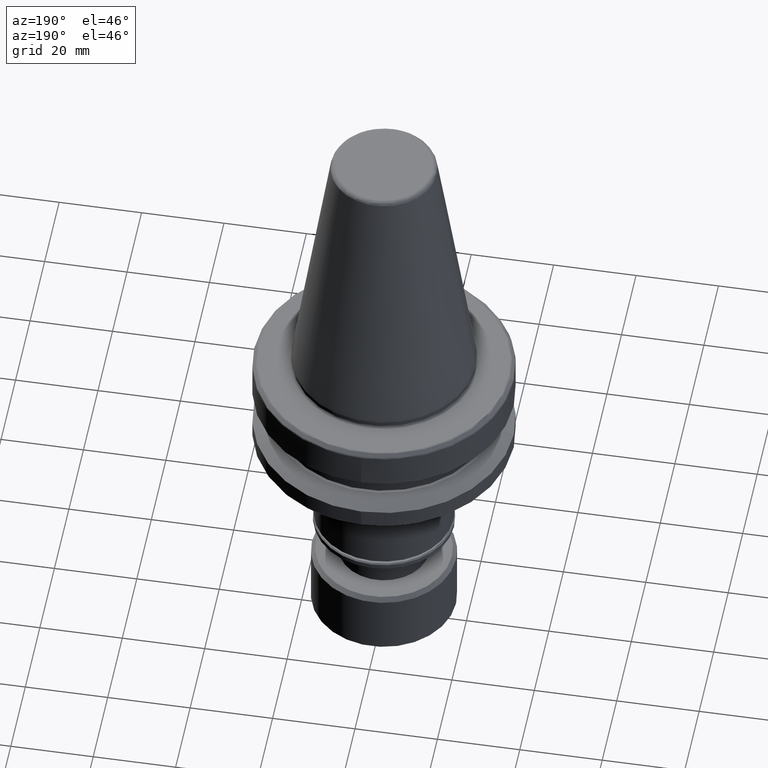
[diagram: clean part render]
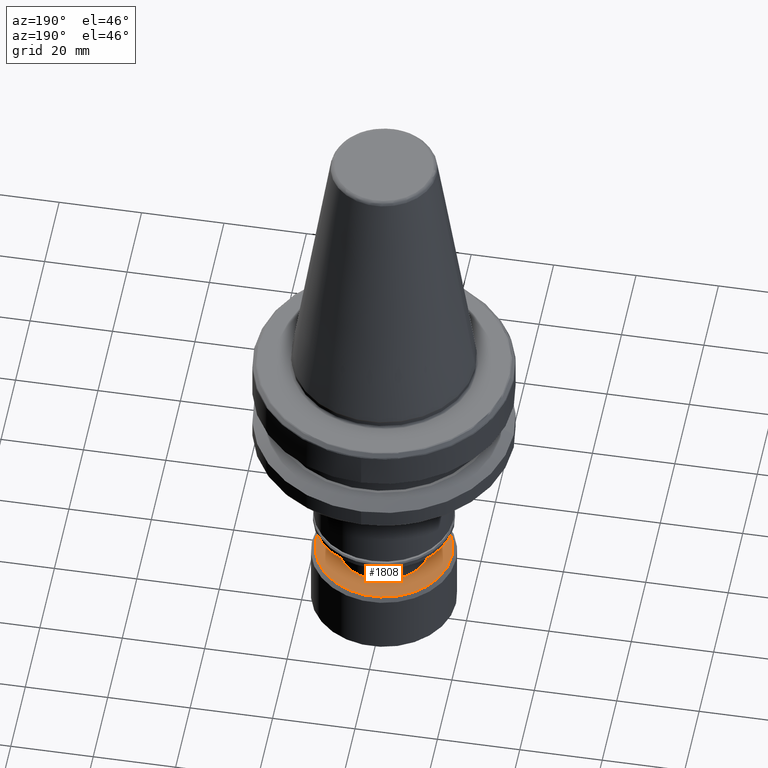
[diagram: same view with one face highlighted and labeled with its STEP entity id]
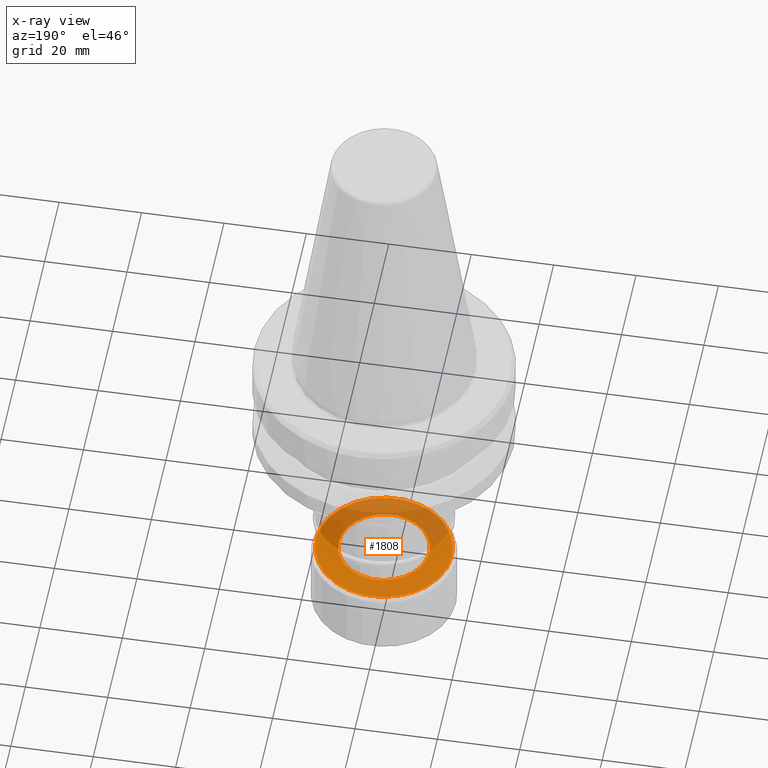
[diagram: x-ray of the same camera — body ghosted, the highlighted face saturated]
A machine part, auxiliary view. The second image highlights one B-rep face of the part: STEP entity #1808.
The next image is the same camera in x-ray: the body ghosted, the highlighted face saturated — about 45% of this face is hidden behind the body in this view.
In plain terms, the highlighted planar face has unit normal (0, -0, 1).
Its self-contained STEP definition (entity closure, byte-faithful):
#28 = CIRCLE ( 'NONE', #2882, 16.49999999997750400 ) ;
#61 = CARTESIAN_POINT ( 'NONE',  ( 0.0000000000000000000, 0.0000000000000000000, -66.00213667519568600 ) ) ;
#235 = CARTESIAN_POINT ( 'NONE',  ( 0.0000000000000000000, 0.0000000000000000000, -66.00213667519568600 ) ) ;
#351 = FACE_BOUND ( 'NONE', #948, .T. ) ;
#404 = DIRECTION ( 'NONE',  ( 1.000000000000000000, 0.0000000000000000000, 0.0000000000000000000 ) ) ;
#535 = VERTEX_POINT ( 'NONE', #3181 ) ;
#564 = CARTESIAN_POINT ( 'NONE',  ( 0.0000000000000000000, 0.0000000000000000000, -66.00213667519568600 ) ) ;
#594 = VERTEX_POINT ( 'NONE', #1865 ) ;
#710 = ORIENTED_EDGE ( 'NONE', *, *, #905, .F. ) ;
#817 = CIRCLE ( 'NONE', #3832, 10.95000000000000100 ) ;
#897 = DIRECTION ( 'NONE',  ( 1.000000000000000000, 0.0000000000000000000, 0.0000000000000000000 ) ) ;
#905 = EDGE_CURVE ( 'NONE', #535, #2436, #817, .T. ) ;
#948 = EDGE_LOOP ( 'NONE', ( #710, #2314 ) ) ;
#1061 = DIRECTION ( 'NONE',  ( -0.0000000000000000000, -0.0000000000000000000, 1.000000000000000000 ) ) ;
#1234 = DIRECTION ( 'NONE',  ( 1.000000000000000000, 0.0000000000000000000, 0.0000000000000000000 ) ) ;
#1431 = CARTESIAN_POINT ( 'NONE',  ( 16.49999999997750400, 2.081899558547745600E-015, -66.00213667519568600 ) ) ;
#1671 = DIRECTION ( 'NONE',  ( -0.0000000000000000000, -0.0000000000000000000, 1.000000000000000000 ) ) ;
#1796 = EDGE_CURVE ( 'NONE', #2436, #535, #2686, .T. ) ;
#1802 = FACE_OUTER_BOUND ( 'NONE', #3220, .T. ) ;
#1808 = ADVANCED_FACE ( 'NONE', ( #1802, #351 ), #4206, .T. ) ;
#1865 = CARTESIAN_POINT ( 'NONE',  ( -16.49999999997750400, 0.0000000000000000000, -66.00213667519568600 ) ) ;
#1951 = CIRCLE ( 'NONE', #3498, 16.49999999997750400 ) ;
#2314 = ORIENTED_EDGE ( 'NONE', *, *, #1796, .F. ) ;
#2383 = DIRECTION ( 'NONE',  ( -0.0000000000000000000, -0.0000000000000000000, 1.000000000000000000 ) ) ;
#2436 = VERTEX_POINT ( 'NONE', #2794 ) ;
#2665 = EDGE_CURVE ( 'NONE', #594, #2858, #28, .T. ) ;
#2686 = CIRCLE ( 'NONE', #4282, 10.95000000000000100 ) ;
#2794 = CARTESIAN_POINT ( 'NONE',  ( -10.95000000000000100, 1.340988245066351900E-015, -66.00213667519568600 ) ) ;
#2858 = VERTEX_POINT ( 'NONE', #1431 ) ;
#2872 = ORIENTED_EDGE ( 'NONE', *, *, #3344, .T. ) ;
#2882 = AXIS2_PLACEMENT_3D ( 'NONE', #3074, #1061, #3398 ) ;
#2901 = DIRECTION ( 'NONE',  ( -0.0000000000000000000, -0.0000000000000000000, 1.000000000000000000 ) ) ;
#2918 = AXIS2_PLACEMENT_3D ( 'NONE', #235, #3240, #1234 ) ;
#3074 = CARTESIAN_POINT ( 'NONE',  ( 0.0000000000000000000, 0.0000000000000000000, -66.00213667519568600 ) ) ;
#3166 = ORIENTED_EDGE ( 'NONE', *, *, #2665, .T. ) ;
#3181 = CARTESIAN_POINT ( 'NONE',  ( 10.95000000000000100, 0.0000000000000000000, -66.00213667519568600 ) ) ;
#3220 = EDGE_LOOP ( 'NONE', ( #3166, #2872 ) ) ;
#3240 = DIRECTION ( 'NONE',  ( 0.0000000000000000000, -0.0000000000000000000, 1.000000000000000000 ) ) ;
#3344 = EDGE_CURVE ( 'NONE', #2858, #594, #1951, .T. ) ;
#3398 = DIRECTION ( 'NONE',  ( 1.000000000000000000, 0.0000000000000000000, 0.0000000000000000000 ) ) ;
#3498 = AXIS2_PLACEMENT_3D ( 'NONE', #3671, #1671, #3985 ) ;
#3671 = CARTESIAN_POINT ( 'NONE',  ( 0.0000000000000000000, 0.0000000000000000000, -66.00213667519568600 ) ) ;
#3832 = AXIS2_PLACEMENT_3D ( 'NONE', #61, #2383, #404 ) ;
#3985 = DIRECTION ( 'NONE',  ( 1.000000000000000000, 0.0000000000000000000, 0.0000000000000000000 ) ) ;
#4206 = PLANE ( 'NONE',  #2918 ) ;
#4282 = AXIS2_PLACEMENT_3D ( 'NONE', #564, #2901, #897 ) ;